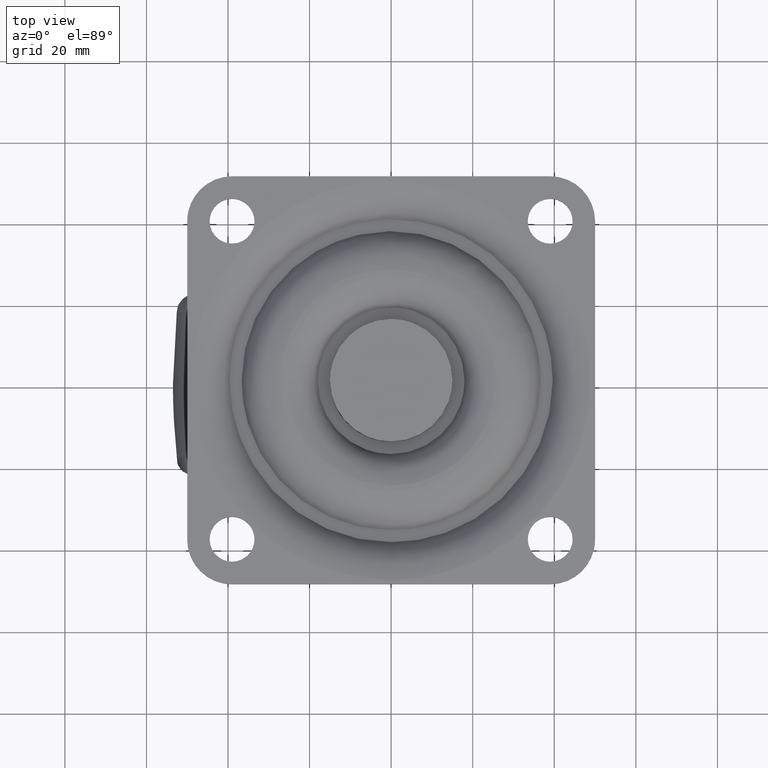
[diagram: clean part render]
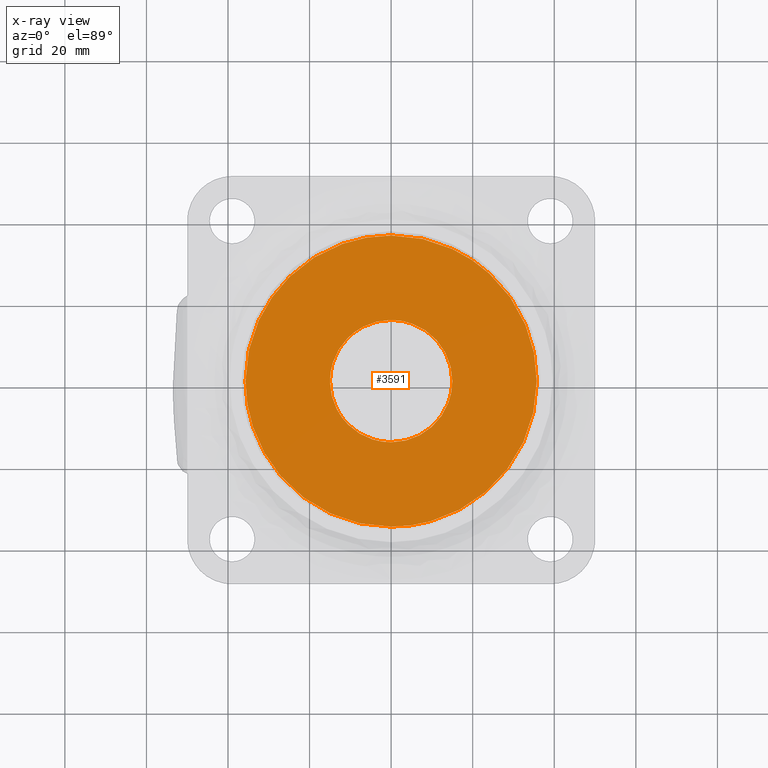
[diagram: x-ray — body ghosted, one internal face saturated and labeled with its STEP entity id]
A machine part, top view, then the same camera in x-ray: the body is ghosted and one INTERNAL B-rep face — a face not visible from any outside direction — is saturated and labeled: STEP entity #3591.
In plain terms, the highlighted face is a freeform B-spline surface patch.
Its self-contained STEP definition (entity closure, byte-faithful):
#3123=CARTESIAN_POINT('',(-10.513639124381820,-10.698756316566071,-13.729572000012899));
#3124=VERTEX_POINT('',#3123);
#3125=CARTESIAN_POINT('',(0.000001654280630,-14.999999999999851,-13.729572000000021));
#3126=VERTEX_POINT('',#3125);
#3127=CARTESIAN_POINT('',(-10.513639124381820,-10.698756316566071,-13.729572000012899));
#3128=CARTESIAN_POINT('',(-9.886155519192457,-11.315492295737180,-13.729572000012160));
#3129=CARTESIAN_POINT('',(-8.804400445855899,-12.205750639691409,-13.729572000010799));
#3130=CARTESIAN_POINT('',(-6.886861704458291,-13.379136707238580,-13.729572000008490));
#3131=CARTESIAN_POINT('',(-5.101723777623890,-14.160563771425720,-13.729572000006261));
#3132=CARTESIAN_POINT('',(-2.700073546513888,-14.825255315746110,-13.729572000003429));
#3133=CARTESIAN_POINT('',(-1.061874918636449,-15.000177747696281,-13.729572000001269));
#3134=CARTESIAN_POINT('',(0.000001654280630,-14.999999999999851,-13.729572000000021));
#3135=B_SPLINE_CURVE_WITH_KNOTS('',3,(#3127,#3128,#3129,#3130,#3131,#3132,#3133,#3134),.UNSPECIFIED.,.F.,.U.,(4,1,1,1,1,4),(0.000000019334577,2.639473656747240,4.186761202696180,6.735199959092647,8.464519960217107,11.650092626273860),.UNSPECIFIED.);
#3136=EDGE_CURVE('',#3124,#3126,#3135,.T.);
#3204=CARTESIAN_POINT('',(-10.698757585987220,10.513639377954931,-13.729571999987289));
#3205=VERTEX_POINT('',#3204);
#3211=CARTESIAN_POINT('',(-0.000002654280985,14.999999999999851,-13.729572000000021));
#3212=VERTEX_POINT('',#3211);
#3213=CARTESIAN_POINT('',(-0.000002654280985,14.999999999999851,-13.729572000000021));
#3214=CARTESIAN_POINT('',(-1.054717277429359,15.000184939193341,-13.729571999998800));
#3215=CARTESIAN_POINT('',(-2.791783644292229,14.815967246909031,-13.729571999996640));
#3216=CARTESIAN_POINT('',(-5.212798710025363,14.121942113307680,-13.729571999993910));
#3217=CARTESIAN_POINT('',(-6.913555520396836,13.352224246004621,-13.729571999991730));
#3218=CARTESIAN_POINT('',(-8.827501755822944,12.197505735313969,-13.729571999989650));
#3219=CARTESIAN_POINT('',(-9.959629975529948,11.266048968218239,-13.729571999988080));
#3220=CARTESIAN_POINT('',(-10.698757585987220,10.513639377954931,-13.729571999987289));
#3221=B_SPLINE_CURVE_WITH_KNOTS('',3,(#3213,#3214,#3215,#3216,#3217,#3218,#3219,#3220),.UNSPECIFIED.,.F.,.U.,(4,1,1,1,1,4),(0.000000020317771,3.164096059140626,5.211466330578594,7.537990134971695,8.747793218868337,11.911889257692989),.UNSPECIFIED.);
#3222=EDGE_CURVE('',#3212,#3205,#3221,.T.);
#3224=CARTESIAN_POINT('',(14.999999499999999,0.0,-13.729572000000021));
#3225=VERTEX_POINT('',#3224);
#3226=CARTESIAN_POINT('',(14.999999499999999,0.0,-13.729572000000021));
#3227=CARTESIAN_POINT('',(15.000076055298390,0.889711627859086,-13.729571999999980));
#3228=CARTESIAN_POINT('',(14.841233125656290,2.669097094695250,-13.729572000000060));
#3229=CARTESIAN_POINT('',(14.142617789517880,5.224226146925402,-13.729572000000021));
#3230=CARTESIAN_POINT('',(12.944585571141920,7.757425420525038,-13.729572000000040));
#3231=CARTESIAN_POINT('',(11.450267504820751,9.798225838989913,-13.729571999999941));
#3232=CARTESIAN_POINT('',(9.602260948381657,11.601396362870879,-13.729572000000010));
#3233=CARTESIAN_POINT('',(7.671103768780945,12.979299786658400,-13.729572000000029));
#3234=CARTESIAN_POINT('',(5.670267166383965,13.933058428348170,-13.729572000000021));
#3235=CARTESIAN_POINT('',(3.159800210955578,14.753968763595140,-13.729572000000029));
#3236=CARTESIAN_POINT('',(1.349966552128220,15.000502816992370,-13.729572000000010));
#3237=CARTESIAN_POINT('',(-0.000002654280985,14.999999999999851,-13.729572000000021));
#3238=B_SPLINE_CURVE_WITH_KNOTS('',3,(#3226,#3227,#3228,#3229,#3230,#3231,#3232,#3233,#3234,#3235,#3236,#3237),.UNSPECIFIED.,.F.,.U.,(4,1,1,1,1,1,1,1,1,4),(0.000000077389611,2.669122899101037,5.338259314783652,7.915366733033897,11.044715636068631,12.885420521919750,15.646622075757589,18.131683751791488,19.512275672340259,23.561983077969749),.UNSPECIFIED.);
#3239=EDGE_CURVE('',#3225,#3212,#3238,.T.);
#3241=CARTESIAN_POINT('',(0.000001654280630,-14.999999999999851,-13.729572000000021));
#3242=CARTESIAN_POINT('',(1.257883621856219,-15.000336456610491,-13.729571999999980));
#3243=CARTESIAN_POINT('',(3.497344657932965,-14.716590414032790,-13.729572000000109));
#3244=CARTESIAN_POINT('',(6.596231759575665,-13.586304011286430,-13.729571999999960));
#3245=CARTESIAN_POINT('',(9.091087037095583,-12.049011652642880,-13.729572000000060));
#3246=CARTESIAN_POINT('',(11.082527702095760,-10.210256860608890,-13.729571999999941));
#3247=CARTESIAN_POINT('',(12.534409714176141,-8.337954327348044,-13.729572000000029));
#3248=CARTESIAN_POINT('',(13.770897511393761,-6.139834918482565,-13.729572000000090));
#3249=CARTESIAN_POINT('',(14.741168365100870,-3.374666236772612,-13.729571999999830));
#3250=CARTESIAN_POINT('',(15.000244915875991,-1.165847074095474,-13.729572000000241));
#3251=CARTESIAN_POINT('',(14.999999499999999,0.0,-13.729572000000021));
#3252=B_SPLINE_CURVE_WITH_KNOTS('',3,(#3241,#3242,#3243,#3244,#3245,#3246,#3247,#3248,#3249,#3250,#3251),.UNSPECIFIED.,.F.,.U.,(4,1,1,1,1,1,1,1,4),(0.000000077567694,3.773582332757066,6.718846734915331,9.848194427120513,12.517267605528501,14.818252323755960,16.935167620054269,20.064502389501680,23.561980649589419),.UNSPECIFIED.);
#3253=EDGE_CURVE('',#3126,#3225,#3252,.T.);
#3272=CARTESIAN_POINT('',(-15.000000500000001,0.0,-13.729572000000021));
#3273=VERTEX_POINT('',#3272);
#3274=CARTESIAN_POINT('',(-15.000000500000001,0.0,-13.729572000000021));
#3275=CARTESIAN_POINT('',(-15.000094732569339,-0.930620245855512,-13.729572000001131));
#3276=CARTESIAN_POINT('',(-14.826249842877081,-2.791824885199080,-13.729572000003429));
#3277=CARTESIAN_POINT('',(-14.130878198694081,-5.217677093356455,-13.729572000006330));
#3278=CARTESIAN_POINT('',(-13.235378633573269,-7.132514169311383,-13.729572000008600));
#3279=CARTESIAN_POINT('',(-12.121840137790750,-8.927496867857363,-13.729572000010799));
#3280=CARTESIAN_POINT('',(-11.177484734385519,-10.046550934860621,-13.729572000012110));
#3281=CARTESIAN_POINT('',(-10.513639124381820,-10.698756316566071,-13.729572000012899));
#3282=B_SPLINE_CURVE_WITH_KNOTS('',3,(#3274,#3275,#3276,#3277,#3278,#3279,#3280,#3281),.UNSPECIFIED.,.F.,.U.,(4,1,1,1,1,4),(0.000000020309992,2.791849004439337,5.583709171684679,7.537991226496617,9.120041998420582,11.911890982548821),.UNSPECIFIED.);
#3283=EDGE_CURVE('',#3273,#3124,#3282,.T.);
#3285=CARTESIAN_POINT('',(-10.698757585987220,10.513639377954931,-13.729571999987289));
#3286=CARTESIAN_POINT('',(-11.315488842898560,9.886152890293518,-13.729571999988069));
#3287=CARTESIAN_POINT('',(-12.399321142871390,8.569257555424512,-13.729571999989631));
#3288=CARTESIAN_POINT('',(-13.667203059445770,6.348720300948942,-13.729571999992300));
#3289=CARTESIAN_POINT('',(-14.706355994909030,3.519080781465228,-13.729571999995910));
#3290=CARTESIAN_POINT('',(-15.000465275499989,1.334962383794588,-13.729571999998230));
#3291=CARTESIAN_POINT('',(-15.000000500000001,0.0,-13.729572000000021));
#3292=B_SPLINE_CURVE_WITH_KNOTS('',3,(#3285,#3286,#3287,#3288,#3289,#3290,#3291),.UNSPECIFIED.,.F.,.U.,(4,1,1,1,4),(0.000000019332418,2.639473263009633,5.096923825683360,7.645363888355739,11.650090888404350),.UNSPECIFIED.);
#3293=EDGE_CURVE('',#3205,#3273,#3292,.T.);
#3348=CARTESIAN_POINT('',(-35.706215000000000,0.0,-13.729574000000000));
#3349=VERTEX_POINT('',#3348);
#3350=CARTESIAN_POINT('',(-24.902654689877622,25.588891656554740,-13.729578317514330));
#3351=VERTEX_POINT('',#3350);
#3352=CARTESIAN_POINT('',(-35.706215000000000,0.0,-13.729574000000000));
#3353=CARTESIAN_POINT('',(-35.706366474578502,2.005942192465479,-13.729574338454830));
#3354=CARTESIAN_POINT('',(-35.404887076469841,5.571995776242560,-13.729574940141260));
#3355=CARTESIAN_POINT('',(-34.109765895236748,11.003767984298859,-13.729575856623040));
#3356=CARTESIAN_POINT('',(-32.155078677984079,15.842942027113690,-13.729576673118149));
#3357=CARTESIAN_POINT('',(-29.108324407373871,20.962493840073350,-13.729577536920130));
#3358=CARTESIAN_POINT('',(-26.553384982481369,23.982812949689048,-13.729578046526949));
#3359=CARTESIAN_POINT('',(-24.902654689877622,25.588891656554740,-13.729578317514330));
#3360=B_SPLINE_CURVE_WITH_KNOTS('',3,(#3352,#3353,#3354,#3355,#3356,#3357,#3358,#3359),.UNSPECIFIED.,.F.,.U.,(4,1,1,1,1,4),(0.000000013512032,6.017813719114805,10.698338664522041,16.716149462551130,21.619556396966392,28.528898652588691),.UNSPECIFIED.);
#3361=EDGE_CURVE('',#3349,#3351,#3360,.T.);
#3363=CARTESIAN_POINT('',(-0.000001389668346,-35.706214999999972,-13.729574000000000));
#3364=VERTEX_POINT('',#3363);
#3365=CARTESIAN_POINT('',(-0.000001389668346,-35.706214999999972,-13.729574000000000));
#3366=CARTESIAN_POINT('',(-2.556110599653213,-35.706714029615597,-13.729574000000000));
#3367=CARTESIAN_POINT('',(-6.207411385012319,-35.312357223972597,-13.729574000000000));
#3368=CARTESIAN_POINT('',(-10.869362600508831,-34.068186944913791,-13.729574000000010));
#3369=CARTESIAN_POINT('',(-13.953505730873511,-32.921780275295021,-13.729574000000071));
#3370=CARTESIAN_POINT('',(-17.379630127013009,-31.275595629652958,-13.729573999999809));
#3371=CARTESIAN_POINT('',(-20.918186267283659,-29.065161181681152,-13.729574000000319));
#3372=CARTESIAN_POINT('',(-24.811718672313170,-25.849814892200939,-13.729573999999509));
#3373=CARTESIAN_POINT('',(-27.862132585654230,-22.484237808979248,-13.729574000000181));
#3374=CARTESIAN_POINT('',(-30.712159714511369,-18.410960258485080,-13.729573999999880));
#3375=CARTESIAN_POINT('',(-32.749107522466133,-14.514422053486109,-13.729574000000181));
#3376=CARTESIAN_POINT('',(-34.252018158160823,-10.313496058022359,-13.729573999999920));
#3377=CARTESIAN_POINT('',(-35.378636927406170,-5.696262206217217,-13.729574000000021));
#3378=CARTESIAN_POINT('',(-35.706476755667907,-2.263954188603995,-13.729574000000079));
#3379=CARTESIAN_POINT('',(-35.706215000000000,0.0,-13.729574000000000));
#3380=B_SPLINE_CURVE_WITH_KNOTS('',3,(#3365,#3366,#3367,#3368,#3369,#3370,#3371,#3372,#3373,#3374,#3375,#3376,#3377,#3378,#3379),.UNSPECIFIED.,.F.,.U.,(4,1,1,1,1,1,1,1,1,1,1,1,4),(0.000000046710589,7.668182297689555,10.954546245536349,14.460002824484530,17.527275162966120,22.347300623155331,26.948206413009359,32.644531767128257,35.930897977746909,41.846367194024381,45.790005866732983,49.295476691979523,56.087278567031227),.UNSPECIFIED.);
#3381=EDGE_CURVE('',#3364,#3349,#3380,.T.);
#3383=CARTESIAN_POINT('',(35.706215000000000,0.0,-13.729574000000000));
#3384=VERTEX_POINT('',#3383);
#3385=CARTESIAN_POINT('',(35.706215000000000,0.0,-13.729574000000000));
#3386=CARTESIAN_POINT('',(35.706292443515402,-1.825752586575606,-13.729573999999991));
#3387=CARTESIAN_POINT('',(35.403201728118930,-5.769384263915321,-13.729574000000000));
#3388=CARTESIAN_POINT('',(34.065893255194617,-11.178806802074931,-13.729574000000000));
#3389=CARTESIAN_POINT('',(32.047494997924893,-15.967844859083231,-13.729573999999960));
#3390=CARTESIAN_POINT('',(29.689560602830898,-20.013617200485449,-13.729574000000101));
#3391=CARTESIAN_POINT('',(26.919550597085589,-23.608359864085230,-13.729573999999980));
#3392=CARTESIAN_POINT('',(24.022218247544490,-26.505598607306649,-13.729574000000060));
#3393=CARTESIAN_POINT('',(20.785288196604721,-29.129054974475920,-13.729573999999991));
#3394=CARTESIAN_POINT('',(17.513440894306360,-31.215022998187980,-13.729573999999991));
#3395=CARTESIAN_POINT('',(13.097790806534670,-33.336766164987083,-13.729574000000030));
#3396=CARTESIAN_POINT('',(7.448914284213068,-35.164761453036071,-13.729573999999941));
#3397=CARTESIAN_POINT('',(2.702144954105572,-35.706728624630067,-13.729574000000010));
#3398=CARTESIAN_POINT('',(-0.000001389668346,-35.706214999999972,-13.729574000000000));
#3399=B_SPLINE_CURVE_WITH_KNOTS('',3,(#3385,#3386,#3387,#3388,#3389,#3390,#3391,#3392,#3393,#3394,#3395,#3396,#3397,#3398),.UNSPECIFIED.,.F.,.U.,(4,1,1,1,1,1,1,1,1,1,1,4),(0.000000046654151,5.477268782714681,11.830905675790209,16.650917921925728,21.032743310682189,25.852762667359091,30.234521416329720,33.301790917084098,38.340913075092232,41.846368362817337,47.980916093976496,56.087280133513680),.UNSPECIFIED.);
#3400=EDGE_CURVE('',#3384,#3364,#3399,.T.);
#3402=CARTESIAN_POINT('',(24.122769497292321,26.325383421729619,-13.729573850136450));
#3403=VERTEX_POINT('',#3402);
#3404=CARTESIAN_POINT('',(24.122769497292321,26.325383421729619,-13.729573850136450));
#3405=CARTESIAN_POINT('',(25.828040254240690,24.763208481254260,-13.729573859029470));
#3406=CARTESIAN_POINT('',(28.363814324600469,21.939605920450180,-13.729573875103600));
#3407=CARTESIAN_POINT('',(31.002524095423801,17.851520752181042,-13.729573898375870));
#3408=CARTESIAN_POINT('',(32.702552752853258,14.474083193118901,-13.729573917602989));
#3409=CARTESIAN_POINT('',(34.234679075432837,10.514664538949170,-13.729573940142631));
#3410=CARTESIAN_POINT('',(35.412038480183547,5.627370534993622,-13.729573967964900));
#3411=CARTESIAN_POINT('',(35.706308265430479,1.850099385454540,-13.729573989467850));
#3412=CARTESIAN_POINT('',(35.706215000000000,0.0,-13.729574000000000));
#3413=B_SPLINE_CURVE_WITH_KNOTS('',3,(#3404,#3405,#3406,#3407,#3408,#3409,#3410,#3411,#3412),.UNSPECIFIED.,.F.,.U.,(4,1,1,1,1,1,4),(0.000000013145634,6.937879511622256,11.331884635651170,14.569563375116740,18.269740516725861,24.051325774089321,29.601625139233541),.UNSPECIFIED.);
#3414=EDGE_CURVE('',#3403,#3384,#3413,.T.);
#3515=CARTESIAN_POINT('',(0.000001389667134,35.706214999999972,-13.729574000000000));
#3516=VERTEX_POINT('',#3515);
#3517=CARTESIAN_POINT('',(-24.902654689877622,25.588891656554740,-13.729578317514330));
#3518=CARTESIAN_POINT('',(-23.102794068897811,27.341024105904228,-13.729578005462310));
#3519=CARTESIAN_POINT('',(-19.982198296432660,29.793737776919119,-13.729577464427029));
#3520=CARTESIAN_POINT('',(-15.377290492815179,32.312005719294369,-13.729576666048050));
#3521=CARTESIAN_POINT('',(-11.115783098888979,34.043479543295540,-13.729575927206490));
#3522=CARTESIAN_POINT('',(-6.028333410870515,35.360105072111452,-13.729575045166371));
#3523=CARTESIAN_POINT('',(-2.081240406866367,35.706416804341821,-13.729574360836860));
#3524=CARTESIAN_POINT('',(0.000001389667134,35.706214999999972,-13.729574000000000));
#3525=B_SPLINE_CURVE_WITH_KNOTS('',3,(#3517,#3518,#3519,#3520,#3521,#3522,#3523,#3524),.UNSPECIFIED.,.F.,.U.,(4,1,1,1,1,4),(0.000000013719358,7.535496795080473,11.841495396517240,15.716884552943510,21.314686756136030,27.558379935831951),.UNSPECIFIED.);
#3526=EDGE_CURVE('',#3351,#3516,#3525,.T.);
#3555=CARTESIAN_POINT('',(0.000001389667134,35.706214999999972,-13.729574000000000));
#3556=CARTESIAN_POINT('',(1.379462102756450,35.706248834308440,-13.729573991430080));
#3557=CARTESIAN_POINT('',(3.931447752207365,35.558120257642159,-13.729573975575720));
#3558=CARTESIAN_POINT('',(8.495323460496072,34.797589018547029,-13.729573947222560));
#3559=CARTESIAN_POINT('',(13.057199324522200,33.379782501904621,-13.729573918881680));
#3560=CARTESIAN_POINT('',(17.160480633858011,31.387222379573330,-13.729573893389940));
#3561=CARTESIAN_POINT('',(20.736342624464861,29.163658405976939,-13.729573871174750));
#3562=CARTESIAN_POINT('',(22.851513663659858,27.490379039071620,-13.729573858034170));
#3563=CARTESIAN_POINT('',(24.122769497292321,26.325383421729619,-13.729573850136450));
#3564=B_SPLINE_CURVE_WITH_KNOTS('',3,(#3555,#3556,#3557,#3558,#3559,#3560,#3561,#3562,#3563),.UNSPECIFIED.,.F.,.U.,(4,1,1,1,1,1,4),(0.000000012279727,4.138383046402559,7.656009951390370,13.863566395690050,18.415803656881970,21.312677327764781,26.485653975775708),.UNSPECIFIED.);
#3565=EDGE_CURVE('',#3516,#3403,#3564,.T.);
#3570=CARTESIAN_POINT('',(-39.273265740088853,-39.273265740088817,-13.729571999999999));
#3571=CARTESIAN_POINT('',(39.273267655519483,-39.273265740088817,-13.729571999999999));
#3572=CARTESIAN_POINT('',(-39.273265740088853,39.273267655519447,-13.729571999999999));
#3573=CARTESIAN_POINT('',(39.273267655519483,39.273267655519447,-13.729571999999999));
#3574=B_SPLINE_SURFACE_WITH_KNOTS('',1,1,((#3570,#3572),(#3571,#3573)),.UNSPECIFIED.,.F.,.F.,.U.,(2,2),(2,2),(0.0,78.546533395608336),(0.0,78.546533395608279),.UNSPECIFIED.);
#3575=ORIENTED_EDGE('',*,*,#3361,.T.);
#3576=ORIENTED_EDGE('',*,*,#3526,.T.);
#3577=ORIENTED_EDGE('',*,*,#3565,.T.);
#3578=ORIENTED_EDGE('',*,*,#3414,.T.);
#3579=ORIENTED_EDGE('',*,*,#3400,.T.);
#3580=ORIENTED_EDGE('',*,*,#3381,.T.);
#3581=EDGE_LOOP('',(#3575,#3576,#3577,#3578,#3579,#3580));
#3582=FACE_OUTER_BOUND('',#3581,.T.);
#3583=ORIENTED_EDGE('',*,*,#3239,.T.);
#3584=ORIENTED_EDGE('',*,*,#3222,.T.);
#3585=ORIENTED_EDGE('',*,*,#3293,.T.);
#3586=ORIENTED_EDGE('',*,*,#3283,.T.);
#3587=ORIENTED_EDGE('',*,*,#3136,.T.);
#3588=ORIENTED_EDGE('',*,*,#3253,.T.);
#3589=EDGE_LOOP('',(#3583,#3584,#3585,#3586,#3587,#3588));
#3590=FACE_BOUND('',#3589,.T.);
#3591=ADVANCED_FACE('',(#3582,#3590),#3574,.F.);